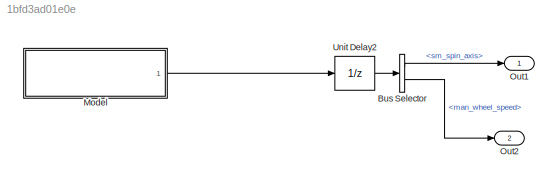
MODEL slx_1bfd3ad01e0e
KIND model
CONFIG AbsTol = auto
CONFIG EnableMultiTasking = on
CONFIG FixedStep = 0.2
CONFIG MaxStep = auto
CONFIG MinStep = auto
CONFIG PreLoadFcn = cellInfo =  {\n  { ...\n    'acs_command_msg', ...\n    '', ...\n    sprintf(''), { ...\n      {'torque_com_wheel', 3, 'double', -1, 'real', 'Sample'}; ...\n      {'thruster_on_times', 6, 'double', -1, 'real', 'Sample'}; ...\n   }\n  }\n};\nSimulink.Bus.cellToObject(cellInfo); \n\n \ncellInfo = {\n    { ...\n         'command_state_msg' , ...\n         '', ...\n         sprintf(''), {  ...\n               {  'q_com...<+1002ch>
CONFIG RelTol = 1e-3
CONFIG SampleTimeConstraint = Unconstrained
CONFIG Solver = FixedStepDiscrete
CONFIG SolverName = FixedStepDiscrete
CONFIG StartTime = 0.0
CONFIG StopTime = 10.0
BLOCK [BusSelector] Bus Selector
  OutputAsBus = off
  OutputSignals = sm_spin_axis,man_wheel_speed
  Ports = [1, 2]
BLOCK [ModelReference] Model
  ModelNameDialog = UnitDelayBio1MDLRef.slx
  ModelReferenceVersion = 1.83
  Ports = [0, 1]
  Variant = off
BLOCK [Outport] Out1
  IconDisplay = Port number
BLOCK [Outport] Out2
  IconDisplay = Port number
  Port = 2
BLOCK [UnitDelay] Unit Delay2
  InputProcessing = Elements as channels (sample based)
  SampleTime = -1
LINE Bus Selector:1 -> Out1:1
LINE Bus Selector:2 -> Out2:1
LINE Model:1 -> Unit Delay2:1
LINE Unit Delay2:1 -> Bus Selector:1
